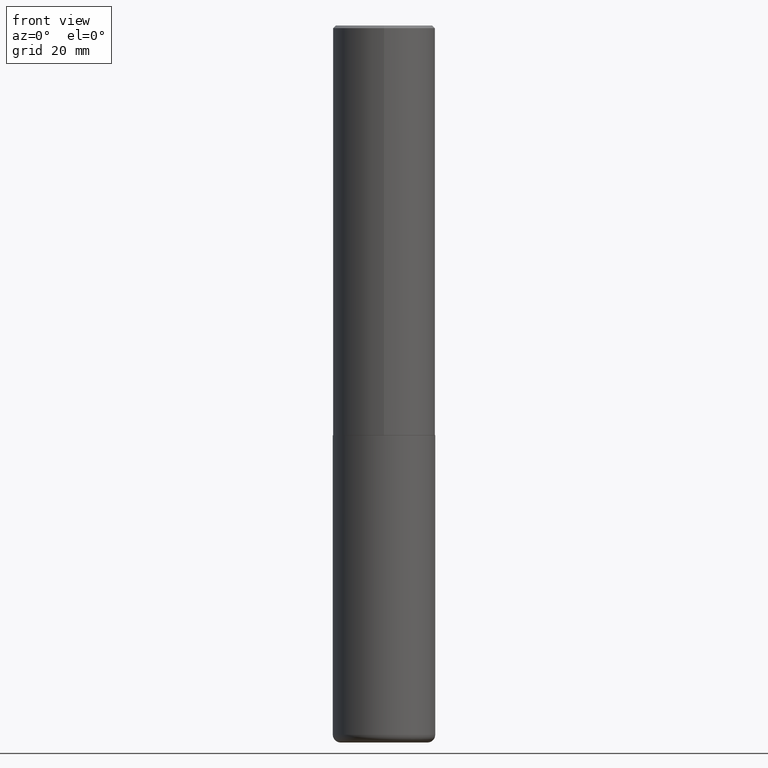
[diagram: clean part render]
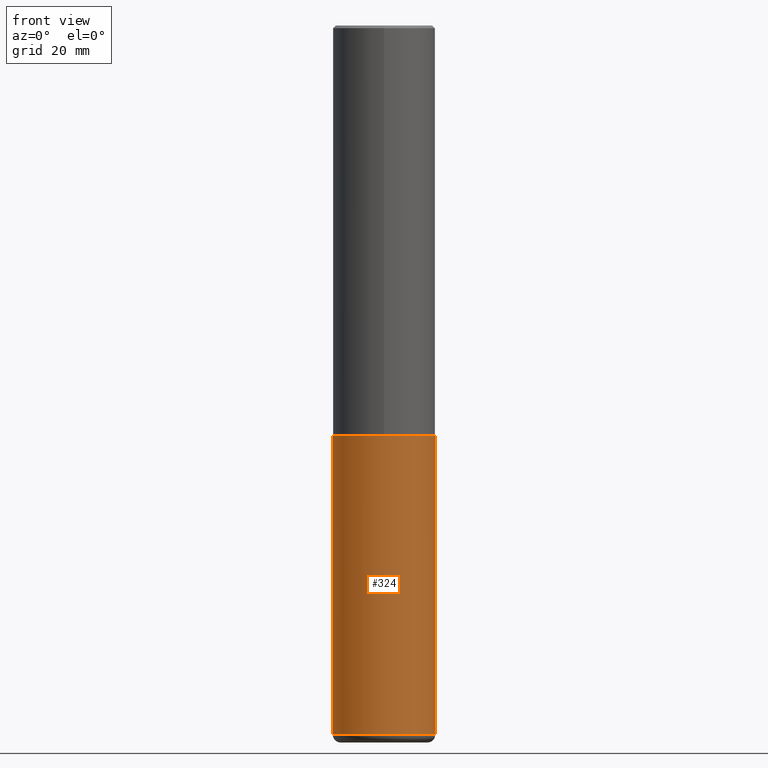
[diagram: same view with one face highlighted and labeled with its STEP entity id]
A machine part, front view. The second image highlights one B-rep face of the part: STEP entity #324.
In plain terms, the highlighted cylindrical surface (partial cylindrical patch) has radius 10 mm, axis along (-0, 0, 1).
Its self-contained STEP definition (entity closure, byte-faithful):
#4 = EDGE_LOOP ( 'NONE', ( #366, #401, #348, #192 ) ) ;
#21 = VECTOR ( 'NONE', #245, 39.37007874015748143 ) ;
#27 = CARTESIAN_POINT ( 'NONE',  ( 0.3936999999999999389, -1.374596203102545395E-14, -3.149599999999999511 ) ) ;
#28 = CYLINDRICAL_SURFACE ( 'NONE', #402, 0.3936999999999999389 ) ;
#30 = DIRECTION ( 'NONE',  ( 1.000000000000000000, -6.982962677686266711E-15, 4.876176775795935793E-29 ) ) ;
#45 = AXIS2_PLACEMENT_3D ( 'NONE', #161, #288, #417 ) ;
#46 = VERTEX_POINT ( 'NONE', #331 ) ;
#71 = EDGE_CURVE ( 'NONE', #388, #172, #134, .T. ) ;
#77 = EDGE_CURVE ( 'NONE', #46, #172, #184, .T. ) ;
#90 = DIRECTION ( 'NONE',  ( -2.445468806185136597E-29, 3.491481338843145583E-15, 1.000000000000000000 ) ) ;
#94 = AXIS2_PLACEMENT_3D ( 'NONE', #212, #217, #180 ) ;
#119 = CIRCLE ( 'NONE', #45, 0.3937000000000000499 ) ;
#134 = CIRCLE ( 'NONE', #94, 0.3936999999999999389 ) ;
#161 = CARTESIAN_POINT ( 'NONE',  ( 1.333440775948569289E-28, -1.903800029631001838E-14, -5.452699999999999214 ) ) ;
#165 = CARTESIAN_POINT ( 'NONE',  ( -0.3937000000000001054, -1.624059354562250123E-14, -5.452699999999999214 ) ) ;
#172 = VERTEX_POINT ( 'NONE', #27 ) ;
#180 = DIRECTION ( 'NONE',  ( 1.000000000000000000, -6.982962677686269866E-15, 0.000000000000000000 ) ) ;
#184 = LINE ( 'NONE', #213, #21 ) ;
#192 = ORIENTED_EDGE ( 'NONE', *, *, #71, .F. ) ;
#212 = CARTESIAN_POINT ( 'NONE',  ( 7.702248551960704469E-29, -1.099676962482037073E-14, -3.149599999999999511 ) ) ;
#213 = CARTESIAN_POINT ( 'NONE',  ( 0.3936999999999999389, -2.749192406205082822E-15, 1.919750796630859611E-29 ) ) ;
#217 = DIRECTION ( 'NONE',  ( -2.445468806185136597E-29, 3.491481338843145583E-15, 1.000000000000000000 ) ) ;
#219 = VECTOR ( 'NONE', #252, 39.37007874015748143 ) ;
#224 = CARTESIAN_POINT ( 'NONE',  ( -0.3936999999999999389, 2.797406750687513998E-15, -1.936584745033356455E-29 ) ) ;
#231 = FACE_OUTER_BOUND ( 'NONE', #4, .T. ) ;
#245 = DIRECTION ( 'NONE',  ( -2.445468806185136877E-29, 3.491481338843145188E-15, 1.000000000000000000 ) ) ;
#252 = DIRECTION ( 'NONE',  ( -2.445468806185136877E-29, 3.491481338843145188E-15, 1.000000000000000000 ) ) ;
#288 = DIRECTION ( 'NONE',  ( -2.445468806185136597E-29, 3.491481338843145583E-15, 1.000000000000000000 ) ) ;
#320 = VERTEX_POINT ( 'NONE', #165 ) ;
#324 = ADVANCED_FACE ( 'NONE', ( #231 ), #28, .T. ) ;
#331 = CARTESIAN_POINT ( 'NONE',  ( 0.3937000000000001054, -2.178719270251510160E-14, -5.452699999999999214 ) ) ;
#348 = ORIENTED_EDGE ( 'NONE', *, *, #77, .T. ) ;
#359 = LINE ( 'NONE', #224, #219 ) ;
#366 = ORIENTED_EDGE ( 'NONE', *, *, #367, .F. ) ;
#367 = EDGE_CURVE ( 'NONE', #320, #388, #359, .T. ) ;
#381 = EDGE_CURVE ( 'NONE', #320, #46, #119, .T. ) ;
#388 = VERTEX_POINT ( 'NONE', #389 ) ;
#389 = CARTESIAN_POINT ( 'NONE',  ( -0.3936999999999999389, -1.221997820987768056E-14, -3.149599999999999511 ) ) ;
#401 = ORIENTED_EDGE ( 'NONE', *, *, #381, .T. ) ;
#402 = AXIS2_PLACEMENT_3D ( 'NONE', #415, #90, #30 ) ;
#415 = CARTESIAN_POINT ( 'NONE',  ( 0.000000000000000000, 0.000000000000000000, 0.000000000000000000 ) ) ;
#417 = DIRECTION ( 'NONE',  ( 1.000000000000000000, -6.982962677686267499E-15, 0.000000000000000000 ) ) ;